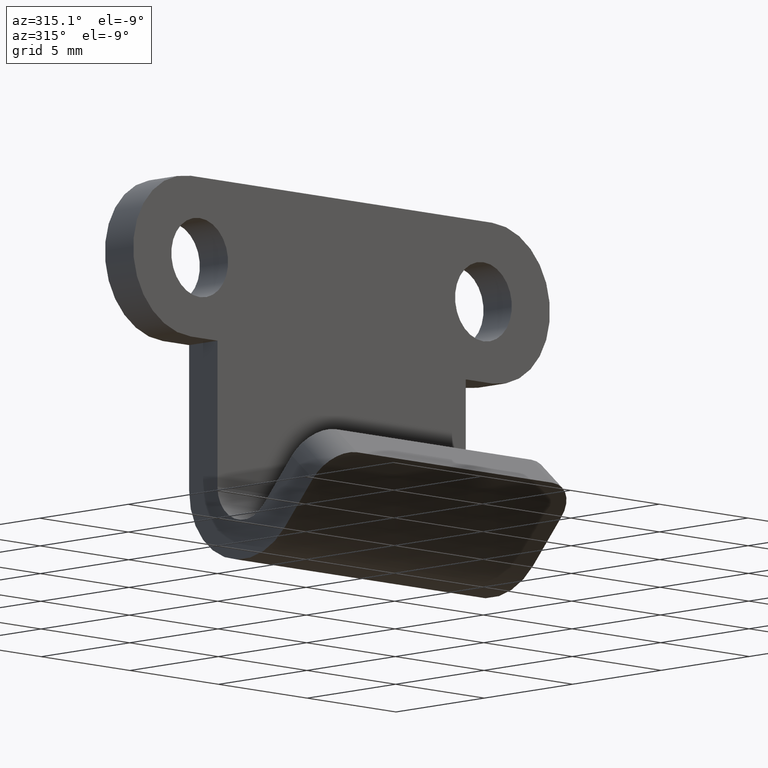
[diagram: clean part render]
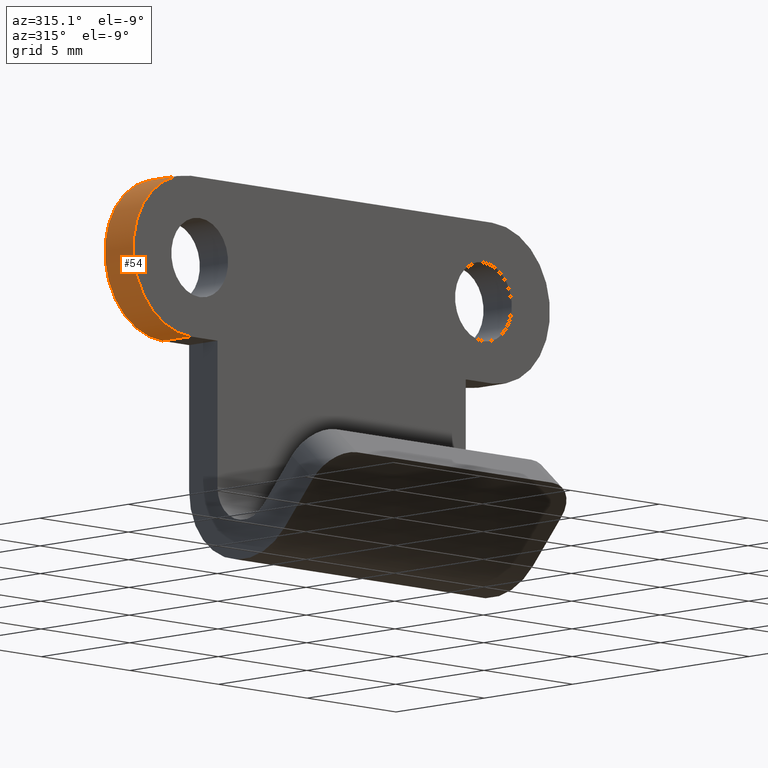
[diagram: same view with one face highlighted and labeled with its STEP entity id]
A machine part, auxiliary view. The second image highlights one B-rep face of the part: STEP entity #54.
In plain terms, the highlighted cylindrical surface (partial cylindrical patch) has radius 3.25 mm, axis along (-0, -1, 0).
Its self-contained STEP definition (entity closure, byte-faithful):
#54=ADVANCED_FACE('',(#205),#204,.T.);
#204=CYLINDRICAL_SURFACE('',#341,3.25000000000E+00);
#205=FACE_OUTER_BOUND('',#342,.T.);
#338=CARTESIAN_POINT('',(-1.65000000000E+01,-2.00694162144E-16,9.99200722163E-14));
#339=DIRECTION('',(-7.88907768773E-17,-1.00000000000E+00,3.44955498022E-31));
#340=DIRECTION('',(4.37257068160E-15,-0.00000000000E+00,1.00000000000E+00));
#341=AXIS2_PLACEMENT_3D('',#338,#339,#340);
#342=EDGE_LOOP('',(#452,#453,#454,#455));
#452=ORIENTED_EDGE('',*,*,#499,.F.);
#453=ORIENTED_EDGE('',*,*,#508,.F.);
#454=ORIENTED_EDGE('',*,*,#519,.F.);
#455=ORIENTED_EDGE('',*,*,#525,.T.);
#499=EDGE_CURVE('',#682,#689,#690,.T.);
#508=EDGE_CURVE('',#743,#682,#750,.T.);
#519=EDGE_CURVE('',#813,#743,#820,.T.);
#525=EDGE_CURVE('',#813,#689,#860,.T.);
#682=VERTEX_POINT('',#984);
#689=VERTEX_POINT('',#988);
#690=CIRCLE('',#992,3.25000000000E+00);
#743=VERTEX_POINT('',#1023);
#750=LINE('',#1027,#1028);
#813=VERTEX_POINT('',#1061);
#820=CIRCLE('',#1068,3.25000000000E+00);
#860=LINE('',#1093,#1094);
#984=CARTESIAN_POINT('',(-1.65000000000E+01,0.00000000000E+00,3.25000000000E+00));
#988=CARTESIAN_POINT('',(-1.65000000000E+01,0.00000000000E+00,-3.25000000000E+00));
#989=CARTESIAN_POINT('',(-1.65000000000E+01,0.00000000000E+00,9.99200722163E-14));
#990=DIRECTION('',(0.00000000000E+00,-1.00000000000E+00,0.00000000000E+00));
#991=DIRECTION('',(-0.00000000000E+00,-0.00000000000E+00,-1.00000000000E+00));
#992=AXIS2_PLACEMENT_3D('',#989,#990,#991);
#1023=CARTESIAN_POINT('',(-1.65000000000E+01,1.60000000000E+00,3.25000000000E+00));
#1027=CARTESIAN_POINT('',(-1.65000000000E+01,1.60000000000E+00,3.25000000000E+00));
#1028=VECTOR('',#1029,1.60000000000E+00);
#1029=DIRECTION('',(0.00000000000E+00,-1.00000000000E+00,0.00000000000E+00));
#1061=CARTESIAN_POINT('',(-1.65000000000E+01,1.60000000000E+00,-3.25000000000E+00));
#1065=CARTESIAN_POINT('',(-1.65000000000E+01,1.60000000000E+00,9.99200722163E-14));
#1066=DIRECTION('',(-2.41552685951E-17,1.00000000000E+00,0.00000000000E+00));
#1067=DIRECTION('',(-0.00000000000E+00,-0.00000000000E+00,1.00000000000E+00));
#1068=AXIS2_PLACEMENT_3D('',#1065,#1066,#1067);
#1093=CARTESIAN_POINT('',(-1.65000000000E+01,1.60000000001E+00,-3.25000000000E+00));
#1094=VECTOR('',#1095,1.60000000001E+00);
#1095=DIRECTION('',(0.00000000000E+00,-1.00000000000E+00,0.00000000000E+00));